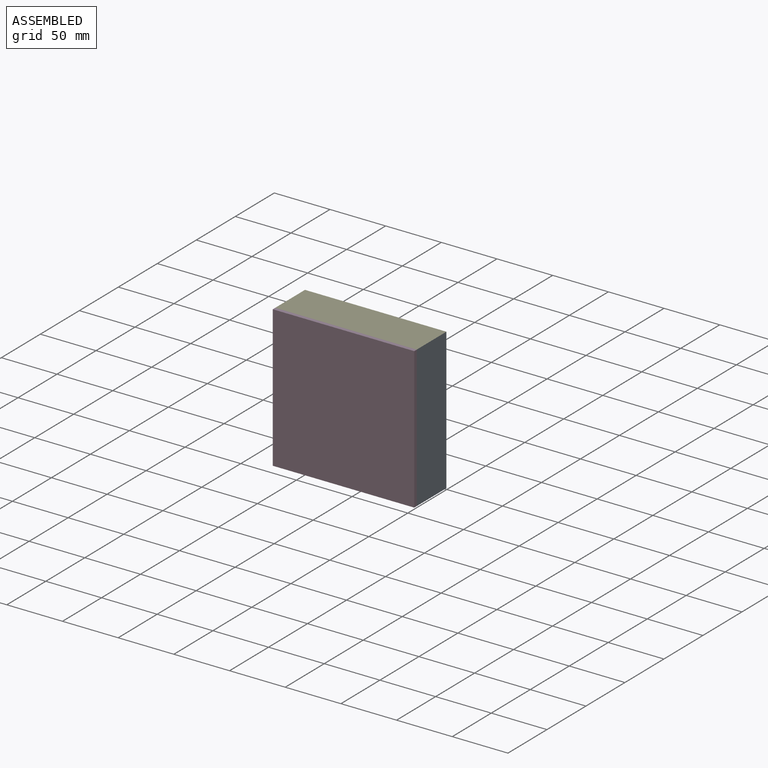
[diagram: assembled view]
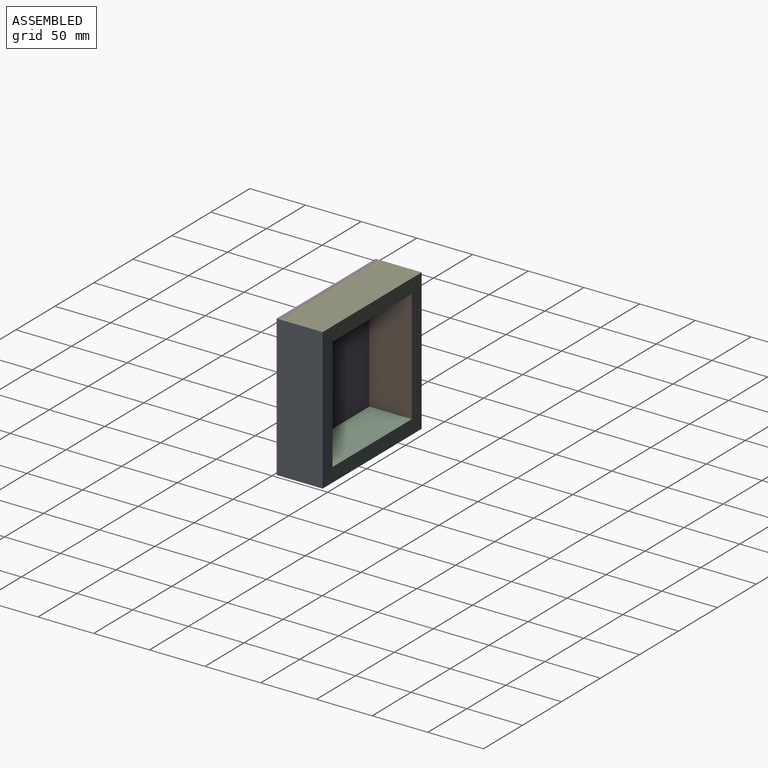
[diagram: assembled view, second angle]
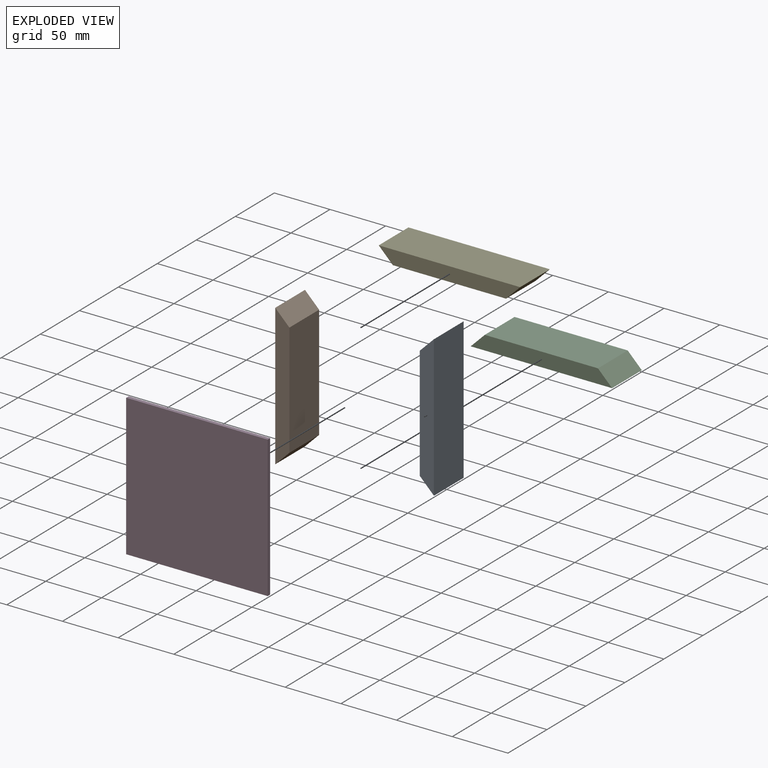
[diagram: exploded view]
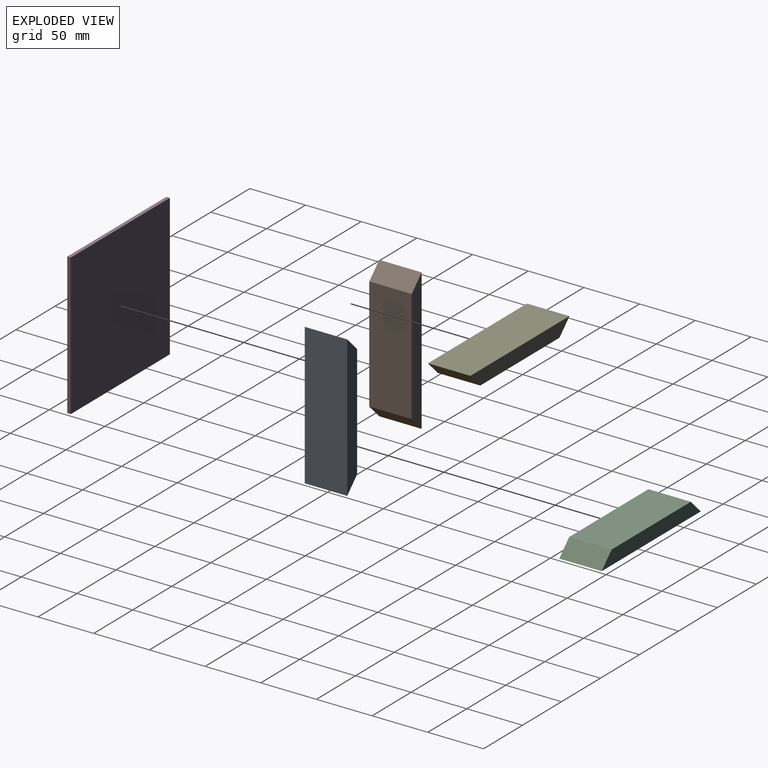
[diagram: exploded view, second angle]
ASSEMBLY  parts=5 mates=4
PART A: 6 faces, bbox 12.7x38.1x127 mm
  f0: plane 101.6x38.1mm, normal (1,0,0), area 3871mm2, adj f1,f3,f4,f5
  f1: plane 38.1x12.7mm, normal (0.71,0,0.71), area 684.3mm2, adj f0,f2,f4,f5
  f2: plane 127x38.1mm, normal (-1,0,0), area 4838.7mm2, adj f1,f3,f4,f5
  f3: plane 38.1x12.7mm, normal (0.71,0,-0.71), area 684.3mm2, adj f0,f2,f4,f5
  f4: plane 127x12.7mm, normal (0,-1,0), area 1451.6mm2, adj f0,f1,f2,f3
  f5: plane 127x12.7mm, normal (0,1,0), area 1451.6mm2, adj f0,f1,f2,f3
PART B: same geometry as A
PART C: 6 faces, bbox 127x38.1x12.7 mm
  f0: plane 127x38.1mm, normal (0,0,1), area 4838.7mm2, adj f1,f3,f4,f5
  f1: plane 38.1x12.7mm, normal (-0.71,0,-0.71), area 684.3mm2, adj f0,f2,f4,f5
  f2: plane 101.6x38.1mm, normal (0,0,-1), area 3871mm2, adj f1,f3,f4,f5
  f3: plane 38.1x12.7mm, normal (0.71,0,-0.71), area 684.3mm2, adj f0,f2,f4,f5
  f4: plane 127x12.7mm, normal (0,-1,0), area 1451.6mm2, adj f0,f1,f2,f3
  f5: plane 127x12.7mm, normal (0,1,0), area 1451.6mm2, adj f0,f1,f2,f3
PART D: 6 faces, bbox 127x3.2x127 mm
  f0: plane 127x3.18mm, normal (1,0,0), area 403.2mm2, adj f1,f3,f4,f5
  f1: plane 127x3.18mm, normal (0,0,1), area 403.2mm2, adj f0,f2,f4,f5
  f2: plane 127x3.18mm, normal (-1,0,0), area 403.2mm2, adj f1,f3,f4,f5
  f3: plane 127x3.18mm, normal (0,0,-1), area 403.2mm2, adj f0,f2,f4,f5
  f4: plane 127x127mm, normal (0,-1,0), area 16129mm2, adj f0,f1,f2,f3
  f5: plane 127x127mm, normal (0,1,0), area 16129mm2, adj f0,f1,f2,f3
PART E: same geometry as C
PLACE A rot(axis=(0,0,1),180deg) t=(-111.61,-44.45,-20.53)mm
PLACE B rot(axis=(1,0,0),180deg) t=(-111.61,-44.45,-20.53)mm
PLACE C rot(axis=(-1,0,0),180deg) t=(-111.61,-44.45,-20.53)mm
PLACE D rot(axis=(0,0,1),180deg) t=(-111.61,-44.45,-20.53)mm
PLACE E rot(axis=(0,0,1),180deg) t=(-111.61,-44.45,-20.53)mm
MATE fastened D.f4 <-> E.f5  axis (0,1,0) through (-111.61,-41.27,42.97)mm
MATE fastened D.f4 <-> C.f5  axis (0,1,0) through (-111.61,-41.27,-84.03)mm
MATE fastened D.f4 <-> B.f5  axis (0,1,0) through (-175.11,-41.27,-20.53)mm
MATE fastened A.f5 <-> D.f4  axis (0,-1,0) through (-48.11,-41.27,-20.53)mm
